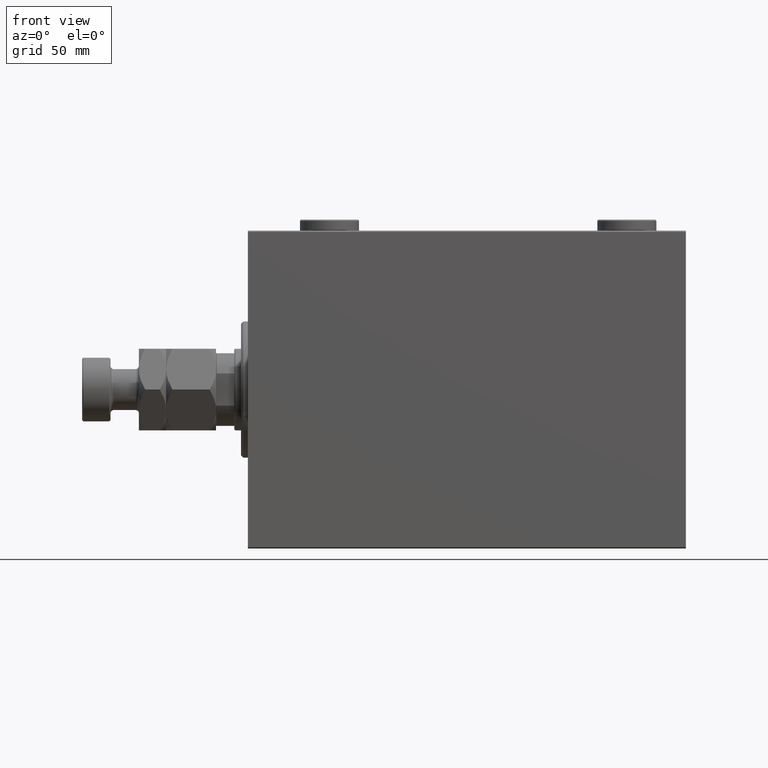
[diagram: clean part render]
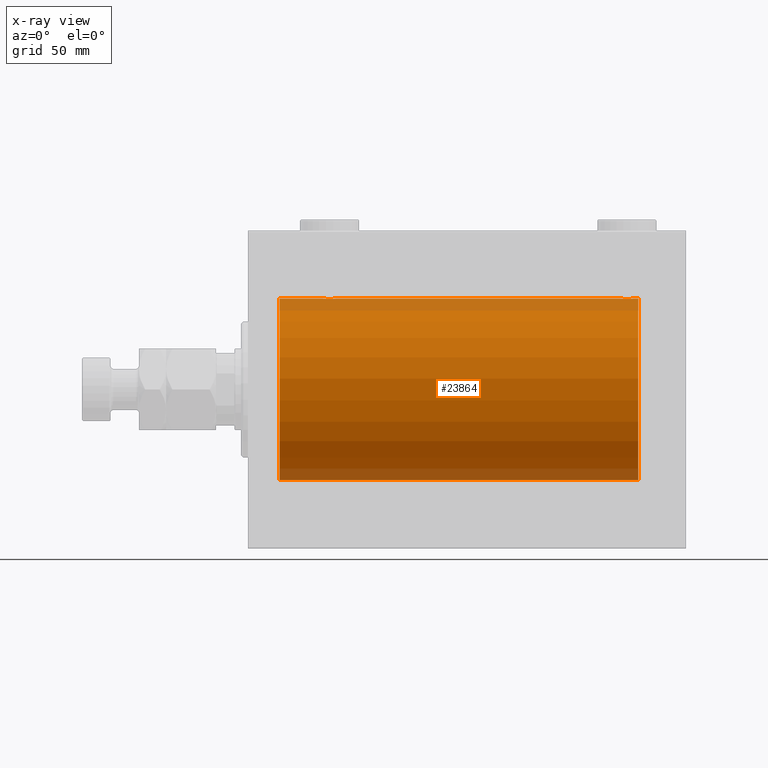
[diagram: x-ray — body ghosted, one internal face saturated and labeled with its STEP entity id]
A machine part, front view, then the same camera in x-ray: the body is ghosted and one INTERNAL B-rep face — a face not visible from any outside direction — is saturated and labeled: STEP entity #23864.
In plain terms, the highlighted cylindrical surface (partial cylindrical patch) has radius 40 mm, axis along (-1, -0, -0).
Its self-contained STEP definition (entity closure, byte-faithful):
#262 = CARTESIAN_POINT ( 'NONE',  ( 36.19560531073086906, -3.000157693440643758, 39.88732948994960026 ) ) ;
#346 = CARTESIAN_POINT ( 'NONE',  ( 170.0000000000000568, -0.3964922677423700081, 40.00000000000001421 ) ) ;
#809 = ORIENTED_EDGE ( 'NONE', *, *, #12672, .T. ) ;
#1273 = CARTESIAN_POINT ( 'NONE',  ( 37.83044822822401443, -2.384933850258097010, -39.92898715513240404 ) ) ;
#1562 = VECTOR ( 'NONE', #22626, 1000.000000000000000 ) ;
#1685 = ORIENTED_EDGE ( 'NONE', *, *, #42792, .T. ) ;
#1742 = CARTESIAN_POINT ( 'NONE',  ( 32.99999999999999289, 8.398598542115384856E-15, -40.00000000000000000 ) ) ;
#1766 = CARTESIAN_POINT ( 'NONE',  ( 167.7786952341575386, -2.903766417398225830, -39.89448096967572610 ) ) ;
#1972 = CARTESIAN_POINT ( 'NONE',  ( 35.03510674146485115, -2.847401743820447084, -39.89859630624608400 ) ) ;
#2209 = CARTESIAN_POINT ( 'NONE',  ( 33.61748319088536618, -1.833695109615709917, -39.95828327492364451 ) ) ;
#2256 = CARTESIAN_POINT ( 'NONE',  ( 166.0306165810553978, -2.845855236045348402, 39.89870693240650468 ) ) ;
#2476 = CARTESIAN_POINT ( 'NONE',  ( 166.0351067414649151, -2.847401743820447972, -39.89859630624609110 ) ) ;
#2835 = ORIENTED_EDGE ( 'NONE', *, *, #5005, .T. ) ;
#2968 = CARTESIAN_POINT ( 'NONE',  ( 169.2582967032051044, -1.984537326394308909, 39.95097977400577349 ) ) ;
#3099 = VECTOR ( 'NONE', #35506, 1000.000000000000000 ) ;
#3365 = CARTESIAN_POINT ( 'NONE',  ( 34.49556917086533758, -2.602909538701760006, 39.91537030566259148 ) ) ;
#3589 = CARTESIAN_POINT ( 'NONE',  ( 39.00000000000000711, -0.3964922677423692865, 40.00000000000000711 ) ) ;
#3827 = CARTESIAN_POINT ( 'NONE',  ( 36.77455678826341057, -2.904869018727228358, 39.89440043036668015 ) ) ;
#4071 = CARTESIAN_POINT ( 'NONE',  ( 14.00000000000001243, 4.898587196589413026E-15, -40.00000000000000000 ) ) ;
#4593 = CARTESIAN_POINT ( 'NONE',  ( 170.0000000000000284, 1.446721683758770418E-15, 40.00000000000000000 ) ) ;
#4636 = CARTESIAN_POINT ( 'NONE',  ( 170.0000000000000284, 4.898587181765620889E-15, -40.00000000000000000 ) ) ;
#5005 = EDGE_CURVE ( 'NONE', #22923, #11082, #27425, .T. ) ;
#5085 = CARTESIAN_POINT ( 'NONE',  ( 38.38507600915352924, -1.830402106103509174, -39.95843610133493229 ) ) ;
#5316 = CARTESIAN_POINT ( 'NONE',  ( 35.80439468926913094, -3.000157693440628659, -39.88732948994960736 ) ) ;
#5337 = CARTESIAN_POINT ( 'NONE',  ( 167.9693834189447443, -2.845855236045343961, -39.89870693240651889 ) ) ;
#5778 = CARTESIAN_POINT ( 'NONE',  ( 38.90425173651352253, -0.7773146824710970293, -39.99291453282343412 ) ) ;
#5802 = CARTESIAN_POINT ( 'NONE',  ( 164.7417032967949808, -1.984537326394303802, -39.95097977400578060 ) ) ;
#5825 = CARTESIAN_POINT ( 'NONE',  ( 164.0189812288907376, -0.3904143323715967839, 39.99856256910221219 ) ) ;
#6036 = CARTESIAN_POINT ( 'NONE',  ( 164.3981127187151401, -1.506322235190783898, -39.97196309111976831 ) ) ;
#6062 = CARTESIAN_POINT ( 'NONE',  ( 169.6018872812850020, -1.506322235190787895, 39.97196309111976831 ) ) ;
#6281 = CARTESIAN_POINT ( 'NONE',  ( 164.0000000000000284, 2.642090954555614270E-16, -40.00000000000000000 ) ) ;
#6533 = CARTESIAN_POINT ( 'NONE',  ( 167.1956053107309401, -3.000157693440639761, 39.88732948994960736 ) ) ;
#6764 = CARTESIAN_POINT ( 'NONE',  ( 165.4955691708653660, -2.602909538701757342, 39.91537030566259858 ) ) ;
#7158 = CARTESIAN_POINT ( 'NONE',  ( 34.16955177177597847, -2.384933850258112553, 39.92898715513240404 ) ) ;
#7382 = CARTESIAN_POINT ( 'NONE',  ( 37.32853644746295885, -2.696981015661930936, 39.90904630908465833 ) ) ;
#7621 = CARTESIAN_POINT ( 'NONE',  ( 33.01898122889073051, -0.3904143323715976166, 39.99856256910221219 ) ) ;
#8653 = CARTESIAN_POINT ( 'NONE',  ( 37.50443082913467663, -2.602909538701744463, -39.91537030566261279 ) ) ;
#8674 = CARTESIAN_POINT ( 'NONE',  ( 170.0000000000000568, -0.1957844162750477235, -40.00000000000000000 ) ) ;
#8915 = DIRECTION ( 'NONE',  ( -1.000000000000000000, -0.000000000000000000, -0.000000000000000000 ) ) ;
#9114 = CARTESIAN_POINT ( 'NONE',  ( 39.00000000000000000, -0.1957844162750501937, -39.99999999999999289 ) ) ;
#9134 = CARTESIAN_POINT ( 'NONE',  ( 165.6714635525371193, -2.696981015661914949, -39.90904630908467965 ) ) ;
#9317 = CARTESIAN_POINT ( 'NONE',  ( 14.00000000000001243, 0.000000000000000000, 0.000000000000000000 ) ) ;
#9606 = CARTESIAN_POINT ( 'NONE',  ( 165.1730981536759373, -2.387636253591812974, -39.92882473497733287 ) ) ;
#9813 = B_SPLINE_CURVE_WITH_KNOTS ( 'NONE', 3,
 ( #42263, #9114, #33842, #5778, #30282, #19341, #27176, #5085, #12459, #16483, #1273, #8653, #23371, #37905, #34078, #45500, #41701, #5316, #19803, #41238, #1972, #34313, #23845, #38374, #27658, #41471, #2209, #23607, #20267, #37669, #20038, #1742 ),
 .UNSPECIFIED., .F., .F.,
 ( 4, 2, 2, 2, 2, 2, 2, 2, 2, 2, 2, 2, 2, 2, 2, 4 ),
 ( 0.009382660366305113978, 0.009968941372944149781, 0.01055522237958318559, 0.01114150338622222139, 0.01172778439286125719, 0.01231406539950029300, 0.01290034640613932707, 0.01348662741277836287, 0.01407290841941739867, 0.01465918942605643448, 0.01524547043269547028, 0.01583175143933450435, 0.01641803244597354189, 0.01700431345261257943, 0.01759059445925161697, 0.01876315647252968857 ),
 .UNSPECIFIED. ) ;
#9867 = CARTESIAN_POINT ( 'NONE',  ( 39.00000000000000000, 4.898587181754971267E-15, -40.00000000000000000 ) ) ;
#10068 = CARTESIAN_POINT ( 'NONE',  ( 172.0000000000000000, 4.898587196589413026E-15, -40.00000000000000000 ) ) ;
#10081 = CARTESIAN_POINT ( 'NONE',  ( 164.6174831908854514, -1.833695109615717245, -39.95828327492364451 ) ) ;
#10107 = CARTESIAN_POINT ( 'NONE',  ( 165.0153855218772776, -2.258217541132898631, 39.93644519243653690 ) ) ;
#10333 = CARTESIAN_POINT ( 'NONE',  ( 164.0000000000000284, -1.482387970046064334E-23, 40.00000000000000000 ) ) ;
#10381 = VERTEX_POINT ( 'NONE', #30602 ) ;
#10480 = CARTESIAN_POINT ( 'NONE',  ( 37.50088468404035069, -2.604941918888315833, 39.91523680494983495 ) ) ;
#10964 = CARTESIAN_POINT ( 'NONE',  ( 33.61492399084646365, -1.830402106103518722, 39.95843610133494650 ) ) ;
#11082 = VERTEX_POINT ( 'NONE', #45161 ) ;
#11484 = EDGE_LOOP ( 'NONE', ( #46245, #2835, #43672, #14971, #46039, #42410, #809, #45443, #25988, #45271, #1685, #23478 ) ) ;
#11516 = DIRECTION ( 'NONE',  ( 0.000000000000000000, 0.000000000000000000, 1.000000000000000000 ) ) ;
#12459 = CARTESIAN_POINT ( 'NONE',  ( 38.26097616994741912, -1.981471132463159535, -39.95113231465138881 ) ) ;
#12480 = CARTESIAN_POINT ( 'NONE',  ( 168.9846144781228645, -2.258217541132895967, -39.93644519243653690 ) ) ;
#12491 = FACE_OUTER_BOUND ( 'NONE', #11484, .T. ) ;
#12662 = DIRECTION ( 'NONE',  ( -1.000000000000000000, -0.000000000000000000, -0.000000000000000000 ) ) ;
#12672 = EDGE_CURVE ( 'NONE', #15325, #32763, #38979, .T. ) ;
#12703 = LINE ( 'NONE', #16969, #23250 ) ;
#12711 = CARTESIAN_POINT ( 'NONE',  ( 166.8043946892691736, -3.000157693440632212, -39.88732948994960736 ) ) ;
#12893 = DIRECTION ( 'NONE',  ( -1.000000000000000000, 0.000000000000000000, 0.000000000000000000 ) ) ;
#12938 = DIRECTION ( 'NONE',  ( -1.000000000000000000, -0.000000000000000000, -0.000000000000000000 ) ) ;
#12949 = CARTESIAN_POINT ( 'NONE',  ( 164.0797382500836079, -0.7903958539027464703, -39.99381900068937057 ) ) ;
#13211 = CARTESIAN_POINT ( 'NONE',  ( 164.1533472698686467, -0.9668189122103342248, 39.98872185468384544 ) ) ;
#13822 = CARTESIAN_POINT ( 'NONE',  ( 33.39566400087915810, -1.502129635934004614, 39.97212271185186694 ) ) ;
#13882 = CARTESIAN_POINT ( 'NONE',  ( 164.0000000000000568, -0.3964922677423716735, -40.00000000000001421 ) ) ;
#14126 = VERTEX_POINT ( 'NONE', #23859 ) ;
#14149 = VERTEX_POINT ( 'NONE', #45057 ) ;
#14533 = CARTESIAN_POINT ( 'NONE',  ( 38.92026174991647025, -0.7903958539027386987, 39.99381900068935636 ) ) ;
#14848 = CARTESIAN_POINT ( 'NONE',  ( 170.0000000000000284, 1.446721683758770418E-15, 40.00000000000000000 ) ) ;
#14971 = ORIENTED_EDGE ( 'NONE', *, *, #24518, .T. ) ;
#15325 = VERTEX_POINT ( 'NONE', #4071 ) ;
#16273 = CARTESIAN_POINT ( 'NONE',  ( 169.9810187711092908, -0.3904143323715905112, -39.99856256910220509 ) ) ;
#16483 = CARTESIAN_POINT ( 'NONE',  ( 37.98461447812281477, -2.258217541132894191, -39.93644519243654400 ) ) ;
#16969 = CARTESIAN_POINT ( 'NONE',  ( 172.0000000000000000, 4.898587196589413026E-15, -40.00000000000000000 ) ) ;
#17233 = B_SPLINE_CURVE_WITH_KNOTS ( 'NONE', 3,
 ( #4636, #8674, #16273, #19127, #33632, #44592, #45063, #23163, #37690, #12480, #26969, #41491, #37925, #5337, #1766, #30769, #45290, #12711, #27197, #41724, #2476, #9134, #24572, #9606, #45766, #5802, #10081, #6036, #28138, #12949, #13882, #6281 ),
 .UNSPECIFIED., .F., .F.,
 ( 4, 2, 2, 2, 2, 2, 2, 2, 2, 2, 2, 2, 2, 2, 2, 4 ),
 ( 0.009382660366305101834, 0.009968941372944135904, 0.01055522237958316997, 0.01114150338622220404, 0.01172778439286123811, 0.01231406539950027391, 0.01290034640613930798, 0.01348662741277834205, 0.01407290841941737612, 0.01465918942605641019, 0.01524547043269544426, 0.01583175143933447659, 0.01641803244597351413, 0.01700431345261254473, 0.01759059445925158227, 0.01876315647252968163 ),
 .UNSPECIFIED. ) ;
#17237 = CARTESIAN_POINT ( 'NONE',  ( 164.0000000000000284, 2.642090954555614270E-16, -40.00000000000000000 ) ) ;
#17462 = CARTESIAN_POINT ( 'NONE',  ( 165.6677573113414326, -2.695129988695745826, 39.90917164320281074 ) ) ;
#17615 = CARTESIAN_POINT ( 'NONE',  ( 32.99999999999999289, -1.483452932268112700E-23, 40.00000000000000000 ) ) ;
#17854 = CARTESIAN_POINT ( 'NONE',  ( 38.25829670320502629, -1.984537326394305801, 39.95097977400578060 ) ) ;
#18088 = CARTESIAN_POINT ( 'NONE',  ( 33.15334726986859692, -0.9668189122103387767, 39.98872185468385254 ) ) ;
#18861 = CARTESIAN_POINT ( 'NONE',  ( 172.0000000000000000, 0.000000000000000000, 0.000000000000000000 ) ) ;
#19127 = CARTESIAN_POINT ( 'NONE',  ( 169.9042517365134870, -0.7773146824710949199, -39.99291453282344833 ) ) ;
#19341 = CARTESIAN_POINT ( 'NONE',  ( 38.69721340580881019, -1.327859336864143147, -39.97836169682018692 ) ) ;
#19803 = CARTESIAN_POINT ( 'NONE',  ( 35.60890307490667794, -2.980812880639888363, -39.88879797994690080 ) ) ;
#20038 = CARTESIAN_POINT ( 'NONE',  ( 33.00000000000000000, -0.3964922677423601272, -40.00000000000001421 ) ) ;
#20267 = CARTESIAN_POINT ( 'NONE',  ( 33.30462992291564461, -1.331594428131637420, -39.97823692017210817 ) ) ;
#20313 = CARTESIAN_POINT ( 'NONE',  ( 165.1695517717760424, -2.384933850258109445, 39.92898715513240404 ) ) ;
#20556 = CARTESIAN_POINT ( 'NONE',  ( 169.6953700770844193, -1.331594428131642527, 39.97823692017210107 ) ) ;
#21019 = CARTESIAN_POINT ( 'NONE',  ( 167.7745567882635385, -2.904869018727220364, 39.89440043036669437 ) ) ;
#21185 = EDGE_CURVE ( 'NONE', #26553, #32763, #45475, .T. ) ;
#21411 = CARTESIAN_POINT ( 'NONE',  ( 35.60477516546423260, -2.980272303779553766, 39.88883864243167920 ) ) ;
#21651 = CARTESIAN_POINT ( 'NONE',  ( 34.66775731134134730, -2.695129988695744494, 39.90917164320281074 ) ) ;
#21902 = B_SPLINE_CURVE_WITH_KNOTS ( 'NONE', 3,
 ( #17615, #25455, #7621, #46405, #18088, #25683, #13822, #10964, #32825, #39981, #7158, #3365, #21651, #36175, #32347, #21411, #43073, #262, #28789, #3827, #35701, #7382, #10480, #32117, #24745, #17854, #46875, #22121, #43308, #14533, #3589, #28323 ),
 .UNSPECIFIED., .F., .F.,
 ( 4, 2, 2, 2, 2, 2, 2, 2, 2, 2, 2, 2, 2, 2, 2, 4 ),
 ( 0.009382660366305105304, 0.009968941372944142842, 0.01055522237958318038, 0.01114150338622221965, 0.01172778439286125719, 0.01231406539950029473, 0.01290034640613933400, 0.01348662741277837154, 0.01407290841941740908, 0.01465918942605644835, 0.01524547043269548416, 0.01583175143933452517, 0.01641803244597356271, 0.01700431345261260024, 0.01759059445925163778, 0.01876315647252971286 ),
 .UNSPECIFIED. ) ;
#22121 = CARTESIAN_POINT ( 'NONE',  ( 38.60188728128492386, -1.506322235190783232, 39.97196309111974699 ) ) ;
#22234 = CARTESIAN_POINT ( 'NONE',  ( 172.0000000000000000, 4.898587196589413026E-15, -40.00000000000000000 ) ) ;
#22626 = DIRECTION ( 'NONE',  ( -1.000000000000000000, -0.000000000000000000, -0.000000000000000000 ) ) ;
#22923 = VERTEX_POINT ( 'NONE', #22234 ) ;
#23163 = CARTESIAN_POINT ( 'NONE',  ( 169.3850760091535506, -1.830402106103514281, -39.95843610133493229 ) ) ;
#23250 = VECTOR ( 'NONE', #24090, 1000.000000000000000 ) ;
#23371 = CARTESIAN_POINT ( 'NONE',  ( 37.33224268865864559, -2.695129988695730727, -39.90917164320281074 ) ) ;
#23409 = DIRECTION ( 'NONE',  ( 0.000000000000000000, 0.000000000000000000, 1.000000000000000000 ) ) ;
#23478 = ORIENTED_EDGE ( 'NONE', *, *, #29519, .F. ) ;
#23607 = CARTESIAN_POINT ( 'NONE',  ( 33.39811271871507614, -1.506322235190776127, -39.97196309111974699 ) ) ;
#23721 = CIRCLE ( 'NONE', #42716, 40.00000000000000000 ) ;
#23845 = CARTESIAN_POINT ( 'NONE',  ( 34.49911531595964220, -2.604941918888299401, -39.91523680494982784 ) ) ;
#23859 = CARTESIAN_POINT ( 'NONE',  ( 32.99999999999999289, 8.398598542115384856E-15, -40.00000000000000000 ) ) ;
#23864 = ADVANCED_FACE ( 'NONE', ( #12491 ), #26982, .F. ) ;
#24090 = DIRECTION ( 'NONE',  ( -1.000000000000000000, -0.000000000000000000, -0.000000000000000000 ) ) ;
#24097 = VERTEX_POINT ( 'NONE', #4593 ) ;
#24121 = CARTESIAN_POINT ( 'NONE',  ( 169.3825168091146622, -1.833695109615722352, 39.95828327492363030 ) ) ;
#24518 = EDGE_CURVE ( 'NONE', #43532, #35923, #12703, .T. ) ;
#24572 = CARTESIAN_POINT ( 'NONE',  ( 165.4991153159597275, -2.604941918888306951, -39.91523680494984205 ) ) ;
#24599 = CARTESIAN_POINT ( 'NONE',  ( 166.6047751654643037, -2.980272303779546217, 39.88883864243170052 ) ) ;
#24745 = CARTESIAN_POINT ( 'NONE',  ( 37.98136279514229585, -2.261082456166707111, 39.93628274425758207 ) ) ;
#24825 = CARTESIAN_POINT ( 'NONE',  ( 167.3910969250934215, -2.980812880639897688, 39.88879797994690080 ) ) ;
#25309 = AXIS2_PLACEMENT_3D ( 'NONE', #9317, #12893, #38344 ) ;
#25455 = CARTESIAN_POINT ( 'NONE',  ( 32.99999999999997158, -0.1957844162750552452, 40.00000000000000000 ) ) ;
#25683 = CARTESIAN_POINT ( 'NONE',  ( 33.30278659419118270, -1.327859336864150253, 39.97836169682017982 ) ) ;
#25988 = ORIENTED_EDGE ( 'NONE', *, *, #31140, .T. ) ;
#26238 = DIRECTION ( 'NONE',  ( -1.000000000000000000, 0.000000000000000000, 0.000000000000000000 ) ) ;
#26553 = VERTEX_POINT ( 'NONE', #43629 ) ;
#26969 = CARTESIAN_POINT ( 'NONE',  ( 168.8304482282240713, -2.384933850258102783, -39.92898715513240404 ) ) ;
#26982 = CYLINDRICAL_SURFACE ( 'NONE', #35428, 40.00000000000000000 ) ;
#27072 = CARTESIAN_POINT ( 'NONE',  ( 14.00000000000001243, 0.000000000000000000, 40.00000000000000000 ) ) ;
#27176 = CARTESIAN_POINT ( 'NONE',  ( 38.60433599912082769, -1.502129635933996621, -39.97212271185184562 ) ) ;
#27187 = VECTOR ( 'NONE', #39189, 1000.000000000000000 ) ;
#27197 = CARTESIAN_POINT ( 'NONE',  ( 166.6089030749067490, -2.980812880639890583, -39.88879797994690080 ) ) ;
#27425 = LINE ( 'NONE', #10068, #32679 ) ;
#27658 = CARTESIAN_POINT ( 'NONE',  ( 34.01863720485771125, -2.261082456166694676, -39.93628274425758917 ) ) ;
#27702 = CARTESIAN_POINT ( 'NONE',  ( 164.7390238300525880, -1.981471132463162643, 39.95113231465138171 ) ) ;
#27926 = CARTESIAN_POINT ( 'NONE',  ( 164.0957482634864562, -0.7773146824711021363, 39.99291453282343412 ) ) ;
#28138 = CARTESIAN_POINT ( 'NONE',  ( 164.3046299229156944, -1.331594428131649410, -39.97823692017209396 ) ) ;
#28163 = CARTESIAN_POINT ( 'NONE',  ( 164.6149239908464494, -1.830402106103516280, 39.95843610133492518 ) ) ;
#28323 = CARTESIAN_POINT ( 'NONE',  ( 39.00000000000000000, 1.037715139942869821E-15, 40.00000000000000000 ) ) ;
#28789 = CARTESIAN_POINT ( 'NONE',  ( 36.39109692509333627, -2.980812880639903906, 39.88879797994688658 ) ) ;
#28833 = LINE ( 'NONE', #40258, #3099 ) ;
#29519 = EDGE_CURVE ( 'NONE', #14149, #24097, #46560, .T. ) ;
#30282 = CARTESIAN_POINT ( 'NONE',  ( 38.84665273013138886, -0.9668189122103337807, -39.98872185468385965 ) ) ;
#30602 = CARTESIAN_POINT ( 'NONE',  ( 39.00000000000000000, 1.037715139942869821E-15, 40.00000000000000000 ) ) ;
#30723 = CARTESIAN_POINT ( 'NONE',  ( 172.0000000000000000, 0.000000000000000000, 40.00000000000000000 ) ) ;
#30769 = CARTESIAN_POINT ( 'NONE',  ( 167.3952248345358953, -2.980272303779540444, -39.88883864243170763 ) ) ;
#31140 = EDGE_CURVE ( 'NONE', #26553, #10381, #21902, .T. ) ;
#31265 = CARTESIAN_POINT ( 'NONE',  ( 166.2213047658425751, -2.903766417398230271, 39.89448096967571189 ) ) ;
#31498 = CARTESIAN_POINT ( 'NONE',  ( 164.3027865941912466, -1.327859336864145590, 39.97836169682017982 ) ) ;
#32117 = CARTESIAN_POINT ( 'NONE',  ( 37.82690184632411246, -2.387636253591820079, 39.92882473497731866 ) ) ;
#32347 = CARTESIAN_POINT ( 'NONE',  ( 35.22130476584258219, -2.903766417398241373, 39.89448096967571189 ) ) ;
#32679 = VECTOR ( 'NONE', #12938, 1000.000000000000000 ) ;
#32700 = CARTESIAN_POINT ( 'NONE',  ( 172.0000000000000000, 0.000000000000000000, 40.00000000000000000 ) ) ;
#32763 = VERTEX_POINT ( 'NONE', #27072 ) ;
#32825 = CARTESIAN_POINT ( 'NONE',  ( 33.73902383005257377, -1.981471132463168416, 39.95113231465138881 ) ) ;
#33632 = CARTESIAN_POINT ( 'NONE',  ( 169.8466527301314670, -0.9668189122103240107, -39.98872185468385254 ) ) ;
#33842 = CARTESIAN_POINT ( 'NONE',  ( 38.98101877110926239, -0.3904143323715922875, -39.99856256910221219 ) ) ;
#34078 = CARTESIAN_POINT ( 'NONE',  ( 36.77869523415741781, -2.903766417398227162, -39.89448096967571900 ) ) ;
#34313 = CARTESIAN_POINT ( 'NONE',  ( 34.67146355253703405, -2.696981015661913172, -39.90904630908467254 ) ) ;
#34418 = EDGE_CURVE ( 'NONE', #11082, #43532, #17233, .T. ) ;
#35047 = EDGE_CURVE ( 'NONE', #35923, #14126, #9813, .T. ) ;
#35428 = AXIS2_PLACEMENT_3D ( 'NONE', #41503, #8915, #23409 ) ;
#35506 = DIRECTION ( 'NONE',  ( -1.000000000000000000, -0.000000000000000000, -0.000000000000000000 ) ) ;
#35549 = CARTESIAN_POINT ( 'NONE',  ( 168.3285364474630512, -2.696981015661923387, 39.90904630908469386 ) ) ;
#35701 = CARTESIAN_POINT ( 'NONE',  ( 36.96489325853514174, -2.847401743820462183, 39.89859630624607689 ) ) ;
#35923 = VERTEX_POINT ( 'NONE', #9867 ) ;
#36175 = CARTESIAN_POINT ( 'NONE',  ( 35.03061658105534804, -2.845855236045349734, 39.89870693240651889 ) ) ;
#36283 = LINE ( 'NONE', #32700, #1562 ) ;
#36863 = VECTOR ( 'NONE', #12662, 1000.000000000000000 ) ;
#37629 = CARTESIAN_POINT ( 'NONE',  ( 164.0000000000000284, -1.482387970046064334E-23, 40.00000000000000000 ) ) ;
#37669 = CARTESIAN_POINT ( 'NONE',  ( 33.07973825008353685, -0.7903958539027335917, -39.99381900068937057 ) ) ;
#37690 = CARTESIAN_POINT ( 'NONE',  ( 169.2609761699474120, -1.981471132463159313, -39.95113231465138171 ) ) ;
#37905 = CARTESIAN_POINT ( 'NONE',  ( 36.96938341894464486, -2.845855236045336412, -39.89870693240652599 ) ) ;
#37925 = CARTESIAN_POINT ( 'NONE',  ( 168.3322426886586527, -2.695129988695739609, -39.90917164320282495 ) ) ;
#38344 = DIRECTION ( 'NONE',  ( 0.000000000000000000, 0.000000000000000000, 1.000000000000000000 ) ) ;
#38374 = CARTESIAN_POINT ( 'NONE',  ( 34.17309815367587333, -2.387636253591803648, -39.92882473497732576 ) ) ;
#38542 = VERTEX_POINT ( 'NONE', #37629 ) ;
#38657 = EDGE_CURVE ( 'NONE', #38542, #10381, #36283, .T. ) ;
#38889 = CARTESIAN_POINT ( 'NONE',  ( 169.9202617499165626, -0.7903958539027363672, 39.99381900068937767 ) ) ;
#38979 = CIRCLE ( 'NONE', #25309, 40.00000000000000000 ) ;
#39126 = CARTESIAN_POINT ( 'NONE',  ( 166.7995871398080396, -2.999840380514742666, 39.88735335562825668 ) ) ;
#39189 = DIRECTION ( 'NONE',  ( -1.000000000000000000, -0.000000000000000000, -0.000000000000000000 ) ) ;
#39354 = CARTESIAN_POINT ( 'NONE',  ( 167.9648932585352270, -2.847401743820454190, 39.89859630624609821 ) ) ;
#39981 = CARTESIAN_POINT ( 'NONE',  ( 34.01538552187719233, -2.258217541132905293, 39.93644519243653690 ) ) ;
#40258 = CARTESIAN_POINT ( 'NONE',  ( 172.0000000000000000, 4.898587196589413026E-15, -40.00000000000000000 ) ) ;
#40423 = EDGE_CURVE ( 'NONE', #14126, #15325, #28833, .T. ) ;
#41238 = CARTESIAN_POINT ( 'NONE',  ( 35.22544321173659654, -2.904869018727211483, -39.89440043036668726 ) ) ;
#41469 = B_SPLINE_CURVE_WITH_KNOTS ( 'NONE', 3,
 ( #10333, #43151, #5825, #27926, #13211, #31498, #46015, #28163, #27702, #10107, #20313, #6764, #17462, #2256, #31265, #24599, #39126, #6533, #24825, #21019, #39354, #35549, #45788, #42450, #42225, #2968, #24121, #6062, #20556, #38889, #346, #14848 ),
 .UNSPECIFIED., .F., .F.,
 ( 4, 2, 2, 2, 2, 2, 2, 2, 2, 2, 2, 2, 2, 2, 2, 4 ),
 ( 0.009382660366305094896, 0.009968941372944130699, 0.01055522237958316650, 0.01114150338622220404, 0.01172778439286123985, 0.01231406539950027565, 0.01290034640613930972, 0.01348662741277834379, 0.01407290841941737959, 0.01465918942605641540, 0.01524547043269544946, 0.01583175143933448353, 0.01641803244597352107, 0.01700431345261255514, 0.01759059445925158921, 0.01876315647252969204 ),
 .UNSPECIFIED. ) ;
#41471 = CARTESIAN_POINT ( 'NONE',  ( 33.74170329679496660, -1.984537326394296253, -39.95097977400577349 ) ) ;
#41491 = CARTESIAN_POINT ( 'NONE',  ( 168.5044308291347193, -2.602909538701751568, -39.91537030566260569 ) ) ;
#41503 = CARTESIAN_POINT ( 'NONE',  ( 172.0000000000000000, 0.000000000000000000, 0.000000000000000000 ) ) ;
#41701 = CARTESIAN_POINT ( 'NONE',  ( 36.20041286019198168, -2.999840380514733340, -39.88735335562824957 ) ) ;
#41724 = CARTESIAN_POINT ( 'NONE',  ( 166.2254432117366321, -2.904869018727213703, -39.89440043036668726 ) ) ;
#42225 = CARTESIAN_POINT ( 'NONE',  ( 168.9813627951423314, -2.261082456166709775, 39.93628274425758207 ) ) ;
#42263 = CARTESIAN_POINT ( 'NONE',  ( 39.00000000000000000, 4.898587181754971267E-15, -40.00000000000000000 ) ) ;
#42410 = ORIENTED_EDGE ( 'NONE', *, *, #40423, .T. ) ;
#42450 = CARTESIAN_POINT ( 'NONE',  ( 168.8269018463242048, -2.387636253591820079, 39.92882473497732576 ) ) ;
#42716 = AXIS2_PLACEMENT_3D ( 'NONE', #18861, #26238, #11516 ) ;
#42792 = EDGE_CURVE ( 'NONE', #38542, #24097, #41469, .T. ) ;
#43073 = CARTESIAN_POINT ( 'NONE',  ( 35.79958713980802543, -2.999840380514749327, 39.88735335562824247 ) ) ;
#43151 = CARTESIAN_POINT ( 'NONE',  ( 164.0000000000000284, -0.1957844162750525807, 40.00000000000000000 ) ) ;
#43308 = CARTESIAN_POINT ( 'NONE',  ( 38.69537007708435539, -1.331594428131644747, 39.97823692017209396 ) ) ;
#43532 = VERTEX_POINT ( 'NONE', #17237 ) ;
#43629 = CARTESIAN_POINT ( 'NONE',  ( 32.99999999999999289, -1.483452932268112700E-23, 40.00000000000000000 ) ) ;
#43672 = ORIENTED_EDGE ( 'NONE', *, *, #34418, .T. ) ;
#43757 = EDGE_CURVE ( 'NONE', #22923, #14149, #23721, .T. ) ;
#44592 = CARTESIAN_POINT ( 'NONE',  ( 169.6972134058088102, -1.327859336864134043, -39.97836169682016561 ) ) ;
#45057 = CARTESIAN_POINT ( 'NONE',  ( 172.0000000000000000, 0.000000000000000000, 40.00000000000000000 ) ) ;
#45063 = CARTESIAN_POINT ( 'NONE',  ( 169.6043359991208774, -1.502129635934003726, -39.97212271185185273 ) ) ;
#45161 = CARTESIAN_POINT ( 'NONE',  ( 170.0000000000000284, 4.898587181765620889E-15, -40.00000000000000000 ) ) ;
#45271 = ORIENTED_EDGE ( 'NONE', *, *, #38657, .F. ) ;
#45290 = CARTESIAN_POINT ( 'NONE',  ( 167.2004128601921025, -2.999840380514735561, -39.88735335562826378 ) ) ;
#45443 = ORIENTED_EDGE ( 'NONE', *, *, #21185, .F. ) ;
#45475 = LINE ( 'NONE', #30723, #36863 ) ;
#45500 = CARTESIAN_POINT ( 'NONE',  ( 36.39522483453575319, -2.980272303779539556, -39.88883864243169342 ) ) ;
#45766 = CARTESIAN_POINT ( 'NONE',  ( 165.0186372048577823, -2.261082456166703558, -39.93628274425759628 ) ) ;
#45788 = CARTESIAN_POINT ( 'NONE',  ( 168.5008846840404431, -2.604941918888313612, 39.91523680494984916 ) ) ;
#46015 = CARTESIAN_POINT ( 'NONE',  ( 164.3956640008792363, -1.502129635934003948, 39.97212271185186694 ) ) ;
#46039 = ORIENTED_EDGE ( 'NONE', *, *, #35047, .T. ) ;
#46245 = ORIENTED_EDGE ( 'NONE', *, *, #43757, .F. ) ;
#46323 = CARTESIAN_POINT ( 'NONE',  ( 172.0000000000000000, 0.000000000000000000, 40.00000000000000000 ) ) ;
#46405 = CARTESIAN_POINT ( 'NONE',  ( 33.09574826348647036, -0.7773146824711036906, 39.99291453282343412 ) ) ;
#46560 = LINE ( 'NONE', #46323, #27187 ) ;
#46875 = CARTESIAN_POINT ( 'NONE',  ( 38.38251680911464803, -1.833695109615718355, 39.95828327492363741 ) ) ;